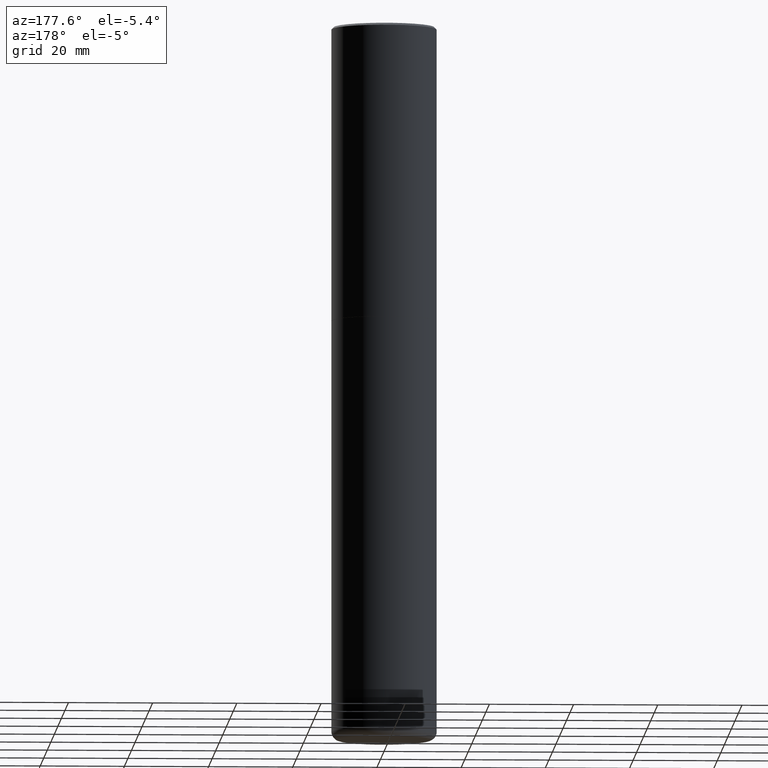
[diagram: clean part render]
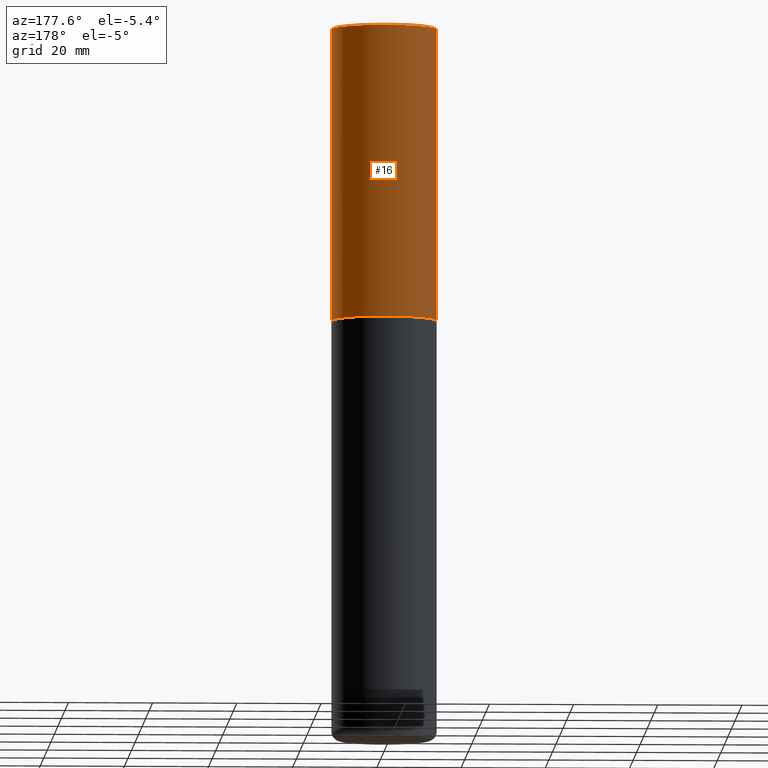
[diagram: same view with one face highlighted and labeled with its STEP entity id]
A machine part, auxiliary view. The second image highlights one B-rep face of the part: STEP entity #16.
In plain terms, the highlighted cylindrical surface (partial cylindrical patch) has radius 12.5006 mm, axis along (-0, 0, 1).
Its self-contained STEP definition (entity closure, byte-faithful):
#11 = CIRCLE ( 'NONE', #172, 0.4921500000000000319 ) ;
#16 = ADVANCED_FACE ( 'NONE', ( #105 ), #227, .T. ) ;
#48 = CARTESIAN_POINT ( 'NONE',  ( -0.4921500000000003094, -1.347319709534586880E-15, -2.754900000000000126 ) ) ;
#69 = CARTESIAN_POINT ( 'NONE',  ( 0.4921500000000003094, -1.305534702220228032E-14, -2.754900000000000126 ) ) ;
#70 = CARTESIAN_POINT ( 'NONE',  ( 0.000000000000000000, 0.000000000000000000, 0.000000000000000000 ) ) ;
#87 = EDGE_LOOP ( 'NONE', ( #416, #297, #315, #284 ) ) ;
#97 = EDGE_CURVE ( 'NONE', #376, #244, #243, .T. ) ;
#98 = DIRECTION ( 'NONE',  ( 1.000000000000000000, -6.982962677686265922E-15, 0.000000000000000000 ) ) ;
#101 = VECTOR ( 'NONE', #408, 39.37007874015748143 ) ;
#105 = FACE_OUTER_BOUND ( 'NONE', #87, .T. ) ;
#108 = CARTESIAN_POINT ( 'NONE',  ( -0.4921500000000001984, 3.496936074043334475E-15, -2.420853904668952630E-29 ) ) ;
#128 = CARTESIAN_POINT ( 'NONE',  ( -0.4921500000000000319, 3.366835455046432873E-15, -0.02000000000000010797 ) ) ;
#137 = LINE ( 'NONE', #108, #291 ) ;
#141 = CIRCLE ( 'NONE', #191, 0.4921500000000003094 ) ;
#161 = DIRECTION ( 'NONE',  ( 1.000000000000000000, -6.982962677686265922E-15, 0.000000000000000000 ) ) ;
#172 = AXIS2_PLACEMENT_3D ( 'NONE', #385, #258, #161 ) ;
#173 = VERTEX_POINT ( 'NONE', #48 ) ;
#191 = AXIS2_PLACEMENT_3D ( 'NONE', #346, #415, #98 ) ;
#219 = EDGE_CURVE ( 'NONE', #376, #173, #141, .T. ) ;
#226 = DIRECTION ( 'NONE',  ( -2.445468806185136877E-29, 3.491481338843145188E-15, 1.000000000000000000 ) ) ;
#227 = CYLINDRICAL_SURFACE ( 'NONE', #325, 0.4921500000000001984 ) ;
#243 = LINE ( 'NONE', #338, #101 ) ;
#244 = VERTEX_POINT ( 'NONE', #283 ) ;
#248 = VERTEX_POINT ( 'NONE', #128 ) ;
#256 = DIRECTION ( 'NONE',  ( -2.445468806185136597E-29, 3.491481338843145583E-15, 1.000000000000000000 ) ) ;
#258 = DIRECTION ( 'NONE',  ( -2.445468806185136597E-29, 3.491481338843145583E-15, 1.000000000000000000 ) ) ;
#283 = CARTESIAN_POINT ( 'NONE',  ( 0.4921500000000000319, -3.446223716380123138E-15, -0.02000000000000010797 ) ) ;
#284 = ORIENTED_EDGE ( 'NONE', *, *, #97, .F. ) ;
#291 = VECTOR ( 'NONE', #226, 39.37007874015748143 ) ;
#297 = ORIENTED_EDGE ( 'NONE', *, *, #333, .T. ) ;
#313 = EDGE_CURVE ( 'NONE', #244, #248, #11, .T. ) ;
#315 = ORIENTED_EDGE ( 'NONE', *, *, #313, .F. ) ;
#325 = AXIS2_PLACEMENT_3D ( 'NONE', #70, #256, #406 ) ;
#333 = EDGE_CURVE ( 'NONE', #173, #248, #137, .T. ) ;
#338 = CARTESIAN_POINT ( 'NONE',  ( 0.4921500000000001984, -3.436665081823297354E-15, 2.399810400207970443E-29 ) ) ;
#346 = CARTESIAN_POINT ( 'NONE',  ( 6.737022014159432629E-29, -9.618681940378981383E-15, -2.754900000000000126 ) ) ;
#376 = VERTEX_POINT ( 'NONE', #69 ) ;
#385 = CARTESIAN_POINT ( 'NONE',  ( 4.890937612370299433E-31, -6.982962677686328587E-17, -0.02000000000000010797 ) ) ;
#406 = DIRECTION ( 'NONE',  ( 1.000000000000000000, -6.982962677686266711E-15, 4.876176775795935232E-29 ) ) ;
#408 = DIRECTION ( 'NONE',  ( -2.445468806185136877E-29, 3.491481338843145188E-15, 1.000000000000000000 ) ) ;
#415 = DIRECTION ( 'NONE',  ( -2.445468806185136597E-29, 3.491481338843145583E-15, 1.000000000000000000 ) ) ;
#416 = ORIENTED_EDGE ( 'NONE', *, *, #219, .T. ) ;